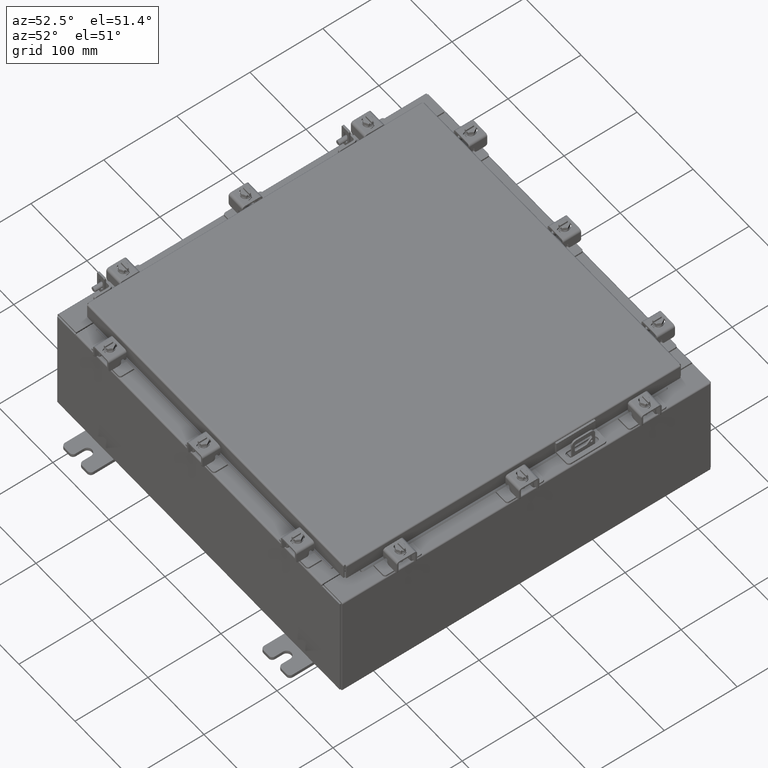
[diagram: clean part render]
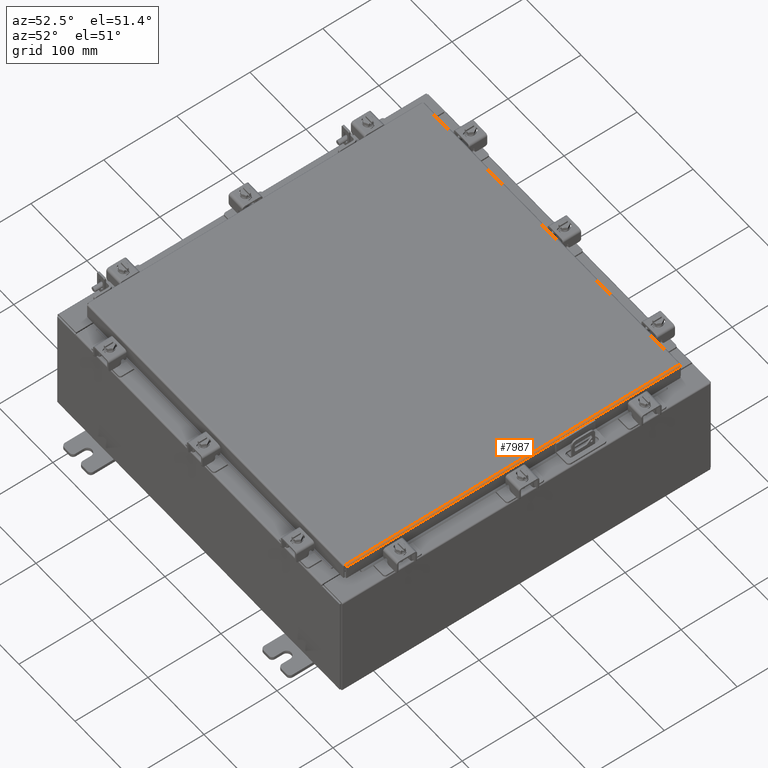
[diagram: same view with one face highlighted and labeled with its STEP entity id]
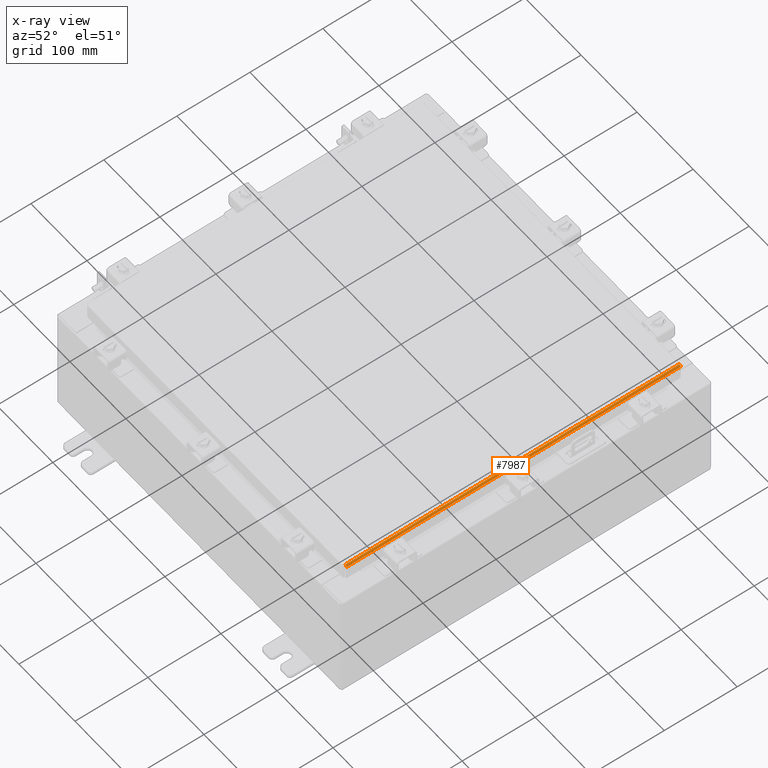
[diagram: x-ray of the same camera — body ghosted, the highlighted face saturated]
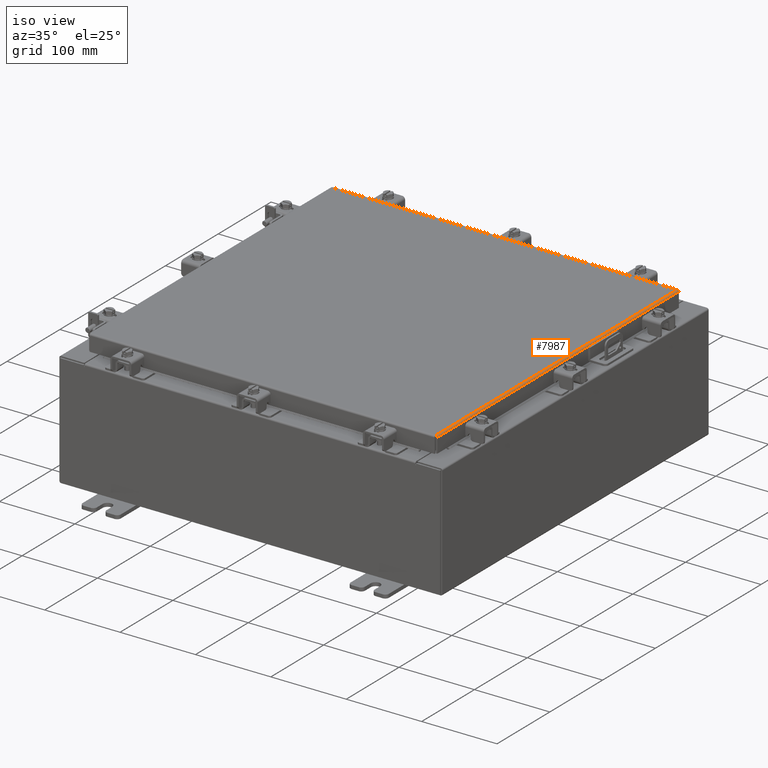
[diagram: same view with one face highlighted and labeled with its STEP entity id]
A machine part, auxiliary view. The second image highlights one B-rep face of the part: STEP entity #7987.
The next image is the same camera in x-ray: the body ghosted, the highlighted face saturated — about 0% of this face is hidden behind the body in this view.
A second angle (iso view) of the same face is appended — the face is thin or edge-on in the first view.
In plain terms, the highlighted cylindrical surface (edge-blend (fillet) strip) has radius 2.2276 mm, axis along (-0, -1, -0).
Its self-contained STEP definition (entity closure, byte-faithful):
#93 = CARTESIAN_POINT ( 'NONE',  ( 9.082931066258664600, -9.005538576250842200, -0.04353261542147005700 ) ) ;
#606 = CARTESIAN_POINT ( 'NONE',  ( 9.094000000000001200, 9.005157864376268900, -0.08769999999999918100 ) ) ;
#1082 = ORIENTED_EDGE ( 'NONE', *, *, #4639, .F. ) ;
#1596 = CARTESIAN_POINT ( 'NONE',  ( 9.006300000000001300, -9.006299999999999500, 0.0000000000000000000 ) ) ;
#1837 = CARTESIAN_POINT ( 'NONE',  ( 9.060195747341801100, -9.005824110156778400, -0.01756921792167882200 ) ) ;
#1847 = CARTESIAN_POINT ( 'NONE',  ( 9.006300000000001300, 9.006299999999999500, 0.0000000000000000000 ) ) ;
#1908 = EDGE_LOOP ( 'NONE', ( #6555, #4240, #1082, #15169 ) ) ;
#2643 = CARTESIAN_POINT ( 'NONE',  ( 9.050467384578526600, 9.005919288125422600, -0.01106893374133231800 ) ) ;
#3573 = CARTESIAN_POINT ( 'NONE',  ( 9.006300000000001300, -9.006299999999999500, -0.08770000000000026400 ) ) ;
#3578 = CARTESIAN_POINT ( 'NONE',  ( 9.029255289458308900, -9.006109644062712900, -0.002282596256188758200 ) ) ;
#3798 = EDGE_CURVE ( 'NONE', #11006, #18369, #21115, .T. ) ;
#3944 = DIRECTION ( 'NONE',  ( -1.693590113897317100E-031, -1.000000000000000000, 6.008022858289562200E-017 ) ) ;
#4240 = ORIENTED_EDGE ( 'NONE', *, *, #6264, .F. ) ;
#4420 = CARTESIAN_POINT ( 'NONE',  ( 9.076430782078322300, 9.005633754219490000, -0.03380425265820177800 ) ) ;
#4639 = EDGE_CURVE ( 'NONE', #15717, #18491, #17813, .T. ) ;
#4671 = CARTESIAN_POINT ( 'NONE',  ( 9.006300000000001300, -9.006299999999999500, 0.0000000000000000000 ) ) ;
#5357 = CARTESIAN_POINT ( 'NONE',  ( 9.006300000000001300, -9.006299999999999500, 0.0000000000000000000 ) ) ;
#6177 = CARTESIAN_POINT ( 'NONE',  ( 9.091717403743812700, 9.005348220313560900, -0.06474471054169418600 ) ) ;
#6264 = EDGE_CURVE ( 'NONE', #18491, #11006, #11915, .T. ) ;
#6555 = ORIENTED_EDGE ( 'NONE', *, *, #3798, .F. ) ;
#7372 = CARTESIAN_POINT ( 'NONE',  ( 9.094000000000001200, -9.005157864376267100, -0.08769999999999918100 ) ) ;
#7690 = AXIS2_PLACEMENT_3D ( 'NONE', #3573, #17530, #10441 ) ;
#7805 = CARTESIAN_POINT ( 'NONE',  ( 9.017779903154993400, 9.006204822031353500, -1.701735877889249200E-016 ) ) ;
#7959 = CARTESIAN_POINT ( 'NONE',  ( 9.094000000000001200, 9.005157864376268900, -0.08769999999999918100 ) ) ;
#7987 = ADVANCED_FACE ( 'NONE', ( #22114 ), #17476, .T. ) ;
#8303 = EDGE_CURVE ( 'NONE', #18369, #15717, #20704, .T. ) ;
#9120 = VECTOR ( 'NONE', #3944, 39.37007874015748100 ) ;
#10441 = DIRECTION ( 'NONE',  ( 1.000000000000000000, 0.0000000000000000000, 2.725618009642215600E-015 ) ) ;
#10530 = CARTESIAN_POINT ( 'NONE',  ( 9.091717403743809100, -9.005348220313557300, -0.06474471054168821900 ) ) ;
#11006 = VERTEX_POINT ( 'NONE', #1596 ) ;
#11692 = DIRECTION ( 'NONE',  ( 0.0000000000000000000, 1.000000000000000000, 0.0000000000000000000 ) ) ;
#11915 = B_SPLINE_CURVE_WITH_KNOTS ( 'NONE', 3,
 ( #20900, #13947, #10530, #93, #12295, #1837, #14028, #3578, #15789, #5357 ),
 .UNSPECIFIED., .F., .F.,
 ( 4, 2, 2, 2, 4 ),
 ( 0.0000000000000000000, 0.2500000000000000000, 0.5000000000000000000, 0.7500000000000000000, 1.000000000000000000 ),
 .UNSPECIFIED. ) ;
#12295 = CARTESIAN_POINT ( 'NONE',  ( 9.076430782078320500, -9.005633754219491700, -0.03380425265819837100 ) ) ;
#12402 = VECTOR ( 'NONE', #11692, 39.37007874015748100 ) ;
#13095 = CARTESIAN_POINT ( 'NONE',  ( 9.006300000000001300, 9.006299999999999500, 0.0000000000000000000 ) ) ;
#13947 = CARTESIAN_POINT ( 'NONE',  ( 9.094000000000001200, -9.005253042344913100, -0.07622009684500395700 ) ) ;
#14028 = CARTESIAN_POINT ( 'NONE',  ( 9.050467384578528400, -9.005919288125422600, -0.01106893374133114200 ) ) ;
#14832 = CARTESIAN_POINT ( 'NONE',  ( 9.060195747341802900, 9.005824110156780200, -0.01756921792168066000 ) ) ;
#15169 = ORIENTED_EDGE ( 'NONE', *, *, #8303, .F. ) ;
#15717 = VERTEX_POINT ( 'NONE', #606 ) ;
#15789 = CARTESIAN_POINT ( 'NONE',  ( 9.017779903154993400, -9.006204822031355300, -1.696066759738335700E-016 ) ) ;
#16141 = CARTESIAN_POINT ( 'NONE',  ( 9.094000000000001200, -5.269035934039632300E-018, -0.08769999999999918100 ) ) ;
#16605 = CARTESIAN_POINT ( 'NONE',  ( 9.082931066258671700, 9.005538576250847500, -0.04353261542147437300 ) ) ;
#17476 = CYLINDRICAL_SURFACE ( 'NONE', #7690, 0.08770000000000026400 ) ;
#17530 = DIRECTION ( 'NONE',  ( -0.0000000000000000000, -1.000000000000000000, -0.0000000000000000000 ) ) ;
#17813 = LINE ( 'NONE', #16141, #9120 ) ;
#18360 = CARTESIAN_POINT ( 'NONE',  ( 9.094000000000001200, 9.005253042344913100, -0.07622009684501077100 ) ) ;
#18369 = VERTEX_POINT ( 'NONE', #1847 ) ;
#18491 = VERTEX_POINT ( 'NONE', #7372 ) ;
#20704 = B_SPLINE_CURVE_WITH_KNOTS ( 'NONE', 3,
 ( #13095, #7805, #21773, #2643, #14832, #4420, #16605, #6177, #18360, #7959 ),
 .UNSPECIFIED., .F., .F.,
 ( 4, 2, 2, 2, 4 ),
 ( 0.0000000000000000000, 0.2500000000000000000, 0.5000000000000000000, 0.7500000000000000000, 1.000000000000000000 ),
 .UNSPECIFIED. ) ;
#20900 = CARTESIAN_POINT ( 'NONE',  ( 9.094000000000001200, -9.005157864376267100, -0.08769999999999918100 ) ) ;
#21115 = LINE ( 'NONE', #4671, #12402 ) ;
#21773 = CARTESIAN_POINT ( 'NONE',  ( 9.029255289458310700, 9.006109644062714600, -0.002282596256189017100 ) ) ;
#22114 = FACE_OUTER_BOUND ( 'NONE', #1908, .T. ) ;